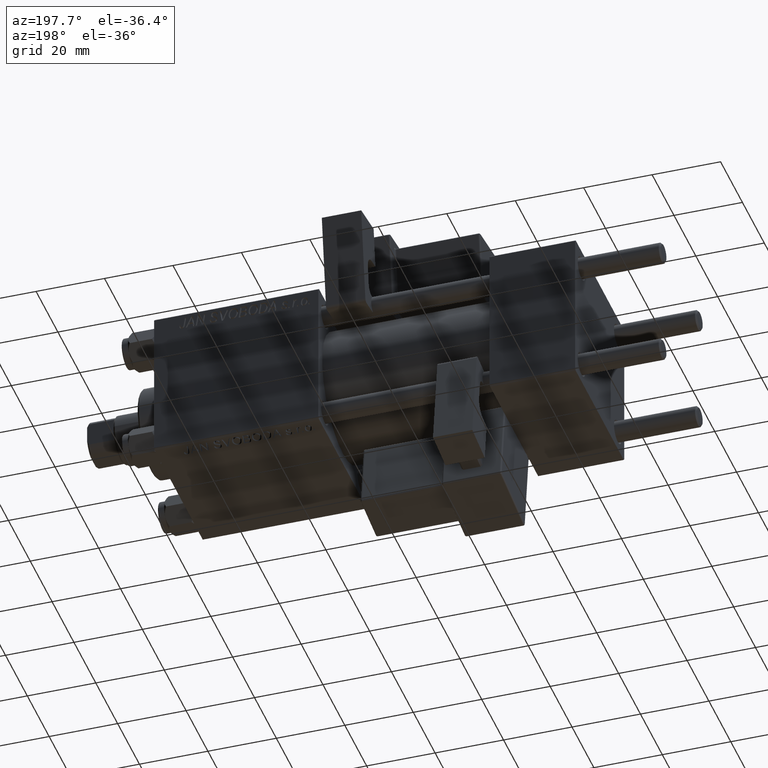
[diagram: clean part render]
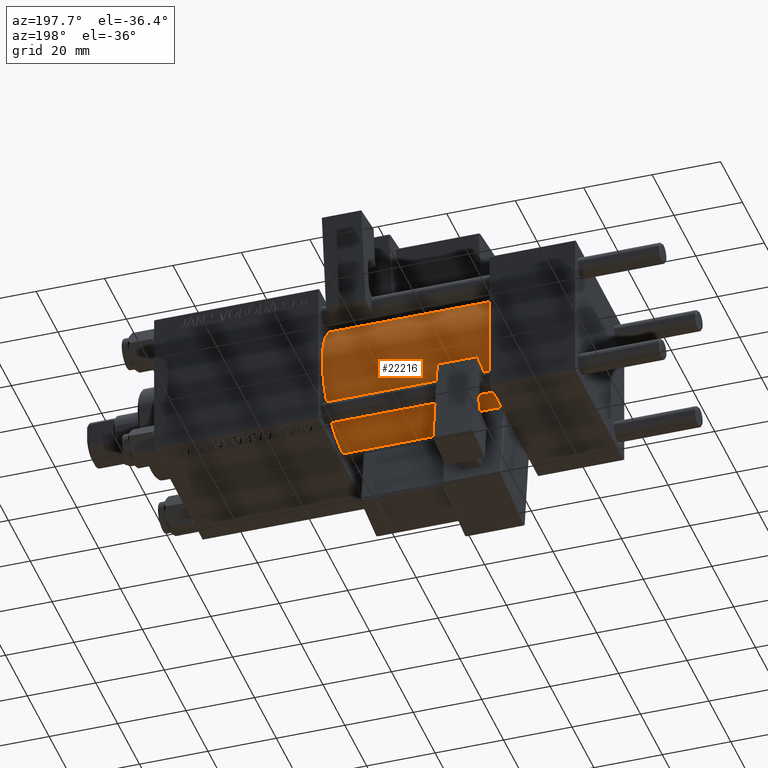
[diagram: same view with one face highlighted and labeled with its STEP entity id]
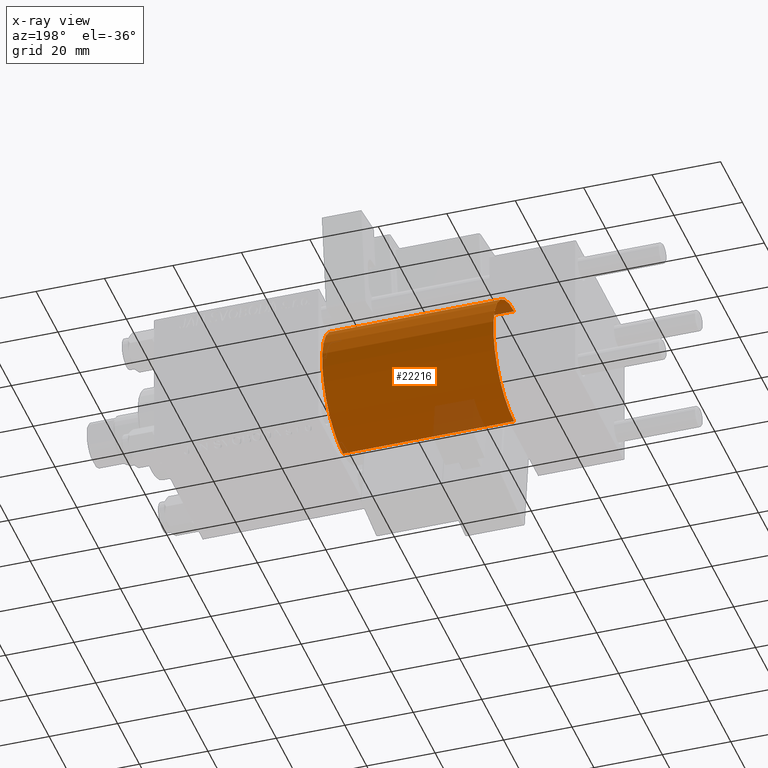
[diagram: x-ray of the same camera — body ghosted, the highlighted face saturated]
A machine part, auxiliary view. The second image highlights one B-rep face of the part: STEP entity #22216.
The next image is the same camera in x-ray: the body ghosted, the highlighted face saturated — about 7% of this face is hidden behind the body in this view.
In plain terms, the highlighted cylindrical surface (partial cylindrical patch) has radius 19 mm, axis along (-1, -0, -0).
Its self-contained STEP definition (entity closure, byte-faithful):
#4294 = DIRECTION ( 'NONE',  ( 0.000000000000000000, 0.000000000000000000, 1.000000000000000000 ) ) ;
#5090 = DIRECTION ( 'NONE',  ( -1.000000000000000000, -0.000000000000000000, -0.000000000000000000 ) ) ;
#6232 = VERTEX_POINT ( 'NONE', #34932 ) ;
#6875 = ORIENTED_EDGE ( 'NONE', *, *, #44185, .T. ) ;
#6977 = EDGE_CURVE ( 'NONE', #39849, #44253, #36617, .T. ) ;
#7034 = AXIS2_PLACEMENT_3D ( 'NONE', #40895, #37452, #41422 ) ;
#7092 = AXIS2_PLACEMENT_3D ( 'NONE', #24743, #41652, #12839 ) ;
#7200 = EDGE_LOOP ( 'NONE', ( #47321, #6875, #17386, #43807 ) ) ;
#9113 = LINE ( 'NONE', #17286, #45215 ) ;
#9684 = CARTESIAN_POINT ( 'NONE',  ( 75.00000000000001421, 0.000000000000000000, 19.00000000000000000 ) ) ;
#12839 = DIRECTION ( 'NONE',  ( 0.000000000000000000, 0.000000000000000000, 1.000000000000000000 ) ) ;
#15102 = CARTESIAN_POINT ( 'NONE',  ( 25.00000000000000000, 0.000000000000000000, 19.00000000000000000 ) ) ;
#15837 = DIRECTION ( 'NONE',  ( -1.000000000000000000, -0.000000000000000000, -0.000000000000000000 ) ) ;
#16347 = CIRCLE ( 'NONE', #7092, 19.00000000000000000 ) ;
#16709 = CYLINDRICAL_SURFACE ( 'NONE', #48225, 19.00000000000000000 ) ;
#17286 = CARTESIAN_POINT ( 'NONE',  ( 75.00000000000001421, 0.000000000000000000, 19.00000000000000000 ) ) ;
#17386 = ORIENTED_EDGE ( 'NONE', *, *, #28847, .T. ) ;
#22216 = ADVANCED_FACE ( 'NONE', ( #24655 ), #16709, .T. ) ;
#24655 = FACE_OUTER_BOUND ( 'NONE', #7200, .T. ) ;
#24743 = CARTESIAN_POINT ( 'NONE',  ( 25.00000000000000000, 0.000000000000000000, 0.000000000000000000 ) ) ;
#24992 = CARTESIAN_POINT ( 'NONE',  ( 75.00000000000001421, 2.326828918379970970E-15, -19.00000000000000000 ) ) ;
#25311 = LINE ( 'NONE', #45909, #45436 ) ;
#28847 = EDGE_CURVE ( 'NONE', #6232, #35995, #16347, .T. ) ;
#34149 = EDGE_CURVE ( 'NONE', #44253, #35995, #9113, .T. ) ;
#34932 = CARTESIAN_POINT ( 'NONE',  ( 25.00000000000000000, 2.326828918379970970E-15, -19.00000000000000000 ) ) ;
#35995 = VERTEX_POINT ( 'NONE', #15102 ) ;
#36617 = CIRCLE ( 'NONE', #7034, 19.00000000000000000 ) ;
#37085 = CARTESIAN_POINT ( 'NONE',  ( 75.00000000000001421, 0.000000000000000000, 0.000000000000000000 ) ) ;
#37452 = DIRECTION ( 'NONE',  ( 1.000000000000000000, 0.000000000000000000, 0.000000000000000000 ) ) ;
#37661 = DIRECTION ( 'NONE',  ( -1.000000000000000000, -0.000000000000000000, -0.000000000000000000 ) ) ;
#39849 = VERTEX_POINT ( 'NONE', #24992 ) ;
#40895 = CARTESIAN_POINT ( 'NONE',  ( 75.00000000000001421, 0.000000000000000000, 0.000000000000000000 ) ) ;
#41422 = DIRECTION ( 'NONE',  ( 0.000000000000000000, 0.000000000000000000, -1.000000000000000000 ) ) ;
#41652 = DIRECTION ( 'NONE',  ( 1.000000000000000000, -0.000000000000000000, 0.000000000000000000 ) ) ;
#43807 = ORIENTED_EDGE ( 'NONE', *, *, #34149, .F. ) ;
#44185 = EDGE_CURVE ( 'NONE', #39849, #6232, #25311, .T. ) ;
#44253 = VERTEX_POINT ( 'NONE', #9684 ) ;
#45215 = VECTOR ( 'NONE', #37661, 1000.000000000000000 ) ;
#45436 = VECTOR ( 'NONE', #15837, 1000.000000000000000 ) ;
#45909 = CARTESIAN_POINT ( 'NONE',  ( 75.00000000000001421, 2.326828918379970970E-15, -19.00000000000000000 ) ) ;
#47321 = ORIENTED_EDGE ( 'NONE', *, *, #6977, .F. ) ;
#48225 = AXIS2_PLACEMENT_3D ( 'NONE', #37085, #5090, #4294 ) ;